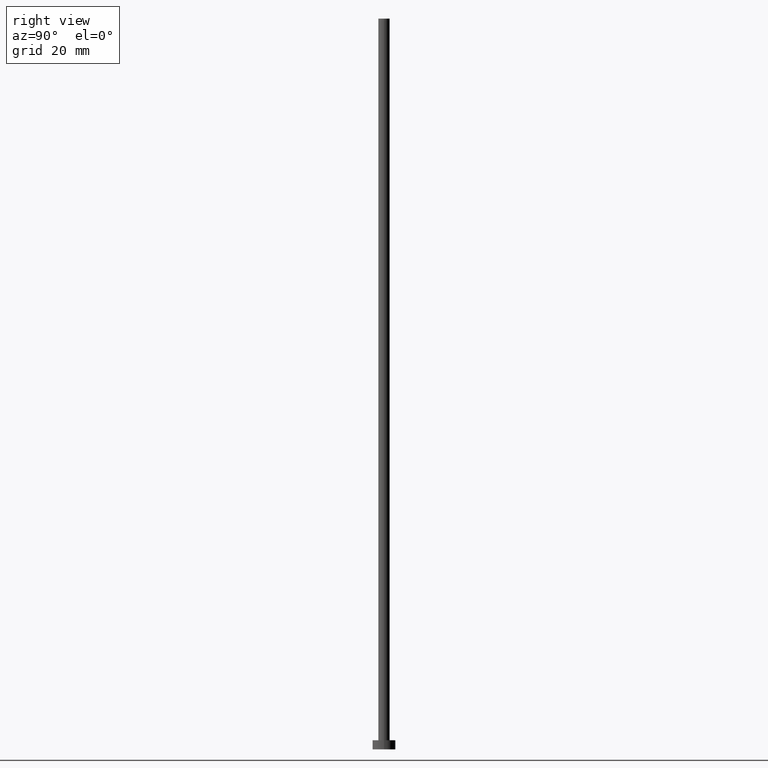
[diagram: clean part render]
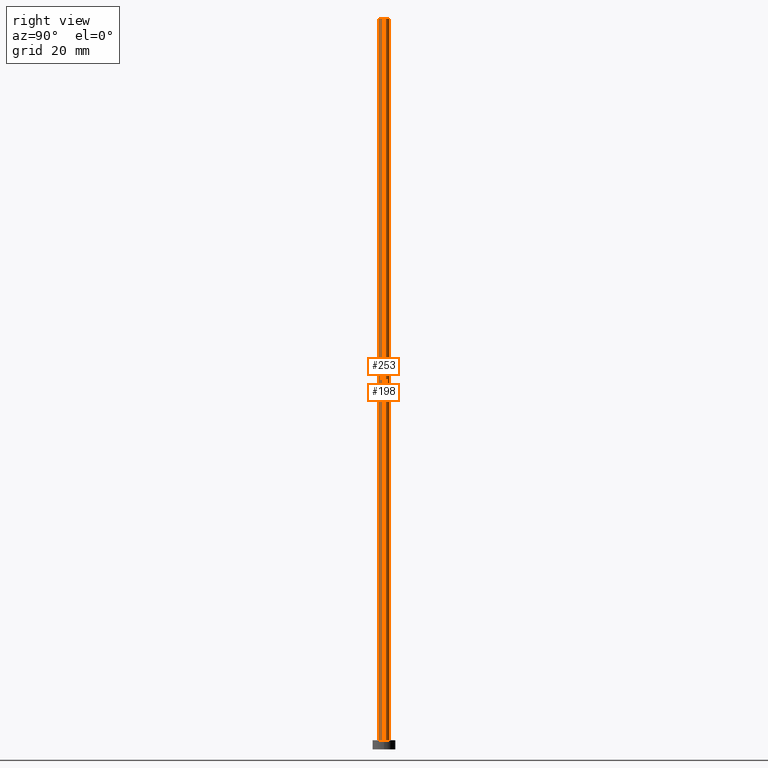
[diagram: same view with one multi-face feature highlighted, each face labeled with its STEP entity id]
A machine part, right view. The highlighted faces form ONE feature: a constant-radius fillet chain: 2 tangent blend faces with common blend radius 1.25 mm. The faces share edges in the B-rep.
Their STEP definitions:
[1] entity #253 (Cylinder):
#6 = CYLINDRICAL_SURFACE ( 'NONE', #110, 1.250000000000000000 ) ;
#7 = DIRECTION ( 'NONE',  ( -1.000000000000000000, 0.000000000000000000, 0.000000000000000000 ) ) ;
#10 = EDGE_LOOP ( 'NONE', ( #50, #92, #49, #131 ) ) ;
#12 = AXIS2_PLACEMENT_3D ( 'NONE', #150, #46, #21 ) ;
#21 = DIRECTION ( 'NONE',  ( 1.000000000000000000, 0.000000000000000000, 0.000000000000000000 ) ) ;
#30 = CARTESIAN_POINT ( 'NONE',  ( 0.000000000000000000, 0.000000000000000000, 160.0000000000000000 ) ) ;
#35 = DIRECTION ( 'NONE',  ( -0.000000000000000000, -0.000000000000000000, -1.000000000000000000 ) ) ;
#36 = DIRECTION ( 'NONE',  ( -0.000000000000000000, -0.000000000000000000, -1.000000000000000000 ) ) ;
#38 = EDGE_CURVE ( 'NONE', #243, #95, #66, .T. ) ;
#46 = DIRECTION ( 'NONE',  ( 0.000000000000000000, 0.000000000000000000, 1.000000000000000000 ) ) ;
#49 = ORIENTED_EDGE ( 'NONE', *, *, #167, .T. ) ;
#50 = ORIENTED_EDGE ( 'NONE', *, *, #62, .F. ) ;
#53 = DIRECTION ( 'NONE',  ( 0.000000000000000000, 0.000000000000000000, 1.000000000000000000 ) ) ;
#62 = EDGE_CURVE ( 'NONE', #79, #95, #69, .T. ) ;
#66 = CIRCLE ( 'NONE', #12, 1.250000000000000000 ) ;
#69 = LINE ( 'NONE', #109, #232 ) ;
#79 = VERTEX_POINT ( 'NONE', #172 ) ;
#92 = ORIENTED_EDGE ( 'NONE', *, *, #229, .F. ) ;
#95 = VERTEX_POINT ( 'NONE', #171 ) ;
#96 = CARTESIAN_POINT ( 'NONE',  ( -1.250000000000000000, 0.000000000000000000, 2.000000000000000000 ) ) ;
#109 = CARTESIAN_POINT ( 'NONE',  ( 1.250000000000000000, 1.530808498934191571E-16, 160.0000000000000000 ) ) ;
#110 = AXIS2_PLACEMENT_3D ( 'NONE', #190, #35, #7 ) ;
#114 = CIRCLE ( 'NONE', #248, 1.250000000000000000 ) ;
#131 = ORIENTED_EDGE ( 'NONE', *, *, #38, .T. ) ;
#133 = LINE ( 'NONE', #226, #170 ) ;
#150 = CARTESIAN_POINT ( 'NONE',  ( 0.000000000000000000, 0.000000000000000000, 2.000000000000000000 ) ) ;
#167 = EDGE_CURVE ( 'NONE', #210, #243, #133, .T. ) ;
#170 = VECTOR ( 'NONE', #36, 1000.000000000000000 ) ;
#171 = CARTESIAN_POINT ( 'NONE',  ( 1.250000000000000000, 1.530808498934191571E-16, 2.000000000000000000 ) ) ;
#172 = CARTESIAN_POINT ( 'NONE',  ( 1.250000000000000000, 1.530808498934191571E-16, 160.0000000000000000 ) ) ;
#176 = FACE_OUTER_BOUND ( 'NONE', #10, .T. ) ;
#190 = CARTESIAN_POINT ( 'NONE',  ( 0.000000000000000000, 0.000000000000000000, 160.0000000000000000 ) ) ;
#203 = DIRECTION ( 'NONE',  ( -0.000000000000000000, -0.000000000000000000, -1.000000000000000000 ) ) ;
#210 = VERTEX_POINT ( 'NONE', #223 ) ;
#223 = CARTESIAN_POINT ( 'NONE',  ( -1.250000000000000000, 0.000000000000000000, 160.0000000000000000 ) ) ;
#224 = DIRECTION ( 'NONE',  ( 1.000000000000000000, 0.000000000000000000, 0.000000000000000000 ) ) ;
#226 = CARTESIAN_POINT ( 'NONE',  ( -1.250000000000000000, 0.000000000000000000, 160.0000000000000000 ) ) ;
#229 = EDGE_CURVE ( 'NONE', #210, #79, #114, .T. ) ;
#232 = VECTOR ( 'NONE', #203, 1000.000000000000000 ) ;
#243 = VERTEX_POINT ( 'NONE', #96 ) ;
#248 = AXIS2_PLACEMENT_3D ( 'NONE', #30, #53, #224 ) ;
#253 = ADVANCED_FACE ( 'NONE', ( #176 ), #6, .T. ) ;
[2] entity #198 (Cylinder):
#14 = CIRCLE ( 'NONE', #63, 1.250000000000000000 ) ;
#25 = CARTESIAN_POINT ( 'NONE',  ( 0.000000000000000000, 0.000000000000000000, 160.0000000000000000 ) ) ;
#29 = AXIS2_PLACEMENT_3D ( 'NONE', #25, #187, #236 ) ;
#36 = DIRECTION ( 'NONE',  ( -0.000000000000000000, -0.000000000000000000, -1.000000000000000000 ) ) ;
#47 = CYLINDRICAL_SURFACE ( 'NONE', #56, 1.250000000000000000 ) ;
#56 = AXIS2_PLACEMENT_3D ( 'NONE', #129, #99, #206 ) ;
#60 = EDGE_LOOP ( 'NONE', ( #157, #76, #199, #144 ) ) ;
#62 = EDGE_CURVE ( 'NONE', #79, #95, #69, .T. ) ;
#63 = AXIS2_PLACEMENT_3D ( 'NONE', #68, #71, #213 ) ;
#68 = CARTESIAN_POINT ( 'NONE',  ( 0.000000000000000000, 0.000000000000000000, 2.000000000000000000 ) ) ;
#69 = LINE ( 'NONE', #109, #232 ) ;
#71 = DIRECTION ( 'NONE',  ( 0.000000000000000000, 0.000000000000000000, 1.000000000000000000 ) ) ;
#76 = ORIENTED_EDGE ( 'NONE', *, *, #62, .T. ) ;
#79 = VERTEX_POINT ( 'NONE', #172 ) ;
#95 = VERTEX_POINT ( 'NONE', #171 ) ;
#96 = CARTESIAN_POINT ( 'NONE',  ( -1.250000000000000000, 0.000000000000000000, 2.000000000000000000 ) ) ;
#99 = DIRECTION ( 'NONE',  ( -0.000000000000000000, -0.000000000000000000, -1.000000000000000000 ) ) ;
#109 = CARTESIAN_POINT ( 'NONE',  ( 1.250000000000000000, 1.530808498934191571E-16, 160.0000000000000000 ) ) ;
#129 = CARTESIAN_POINT ( 'NONE',  ( 0.000000000000000000, 0.000000000000000000, 160.0000000000000000 ) ) ;
#133 = LINE ( 'NONE', #226, #170 ) ;
#135 = EDGE_CURVE ( 'NONE', #79, #210, #185, .T. ) ;
#141 = EDGE_CURVE ( 'NONE', #95, #243, #14, .T. ) ;
#144 = ORIENTED_EDGE ( 'NONE', *, *, #167, .F. ) ;
#157 = ORIENTED_EDGE ( 'NONE', *, *, #135, .F. ) ;
#167 = EDGE_CURVE ( 'NONE', #210, #243, #133, .T. ) ;
#170 = VECTOR ( 'NONE', #36, 1000.000000000000000 ) ;
#171 = CARTESIAN_POINT ( 'NONE',  ( 1.250000000000000000, 1.530808498934191571E-16, 2.000000000000000000 ) ) ;
#172 = CARTESIAN_POINT ( 'NONE',  ( 1.250000000000000000, 1.530808498934191571E-16, 160.0000000000000000 ) ) ;
#185 = CIRCLE ( 'NONE', #29, 1.250000000000000000 ) ;
#187 = DIRECTION ( 'NONE',  ( 0.000000000000000000, 0.000000000000000000, 1.000000000000000000 ) ) ;
#198 = ADVANCED_FACE ( 'NONE', ( #214 ), #47, .T. ) ;
#199 = ORIENTED_EDGE ( 'NONE', *, *, #141, .T. ) ;
#203 = DIRECTION ( 'NONE',  ( -0.000000000000000000, -0.000000000000000000, -1.000000000000000000 ) ) ;
#206 = DIRECTION ( 'NONE',  ( -1.000000000000000000, 0.000000000000000000, 0.000000000000000000 ) ) ;
#210 = VERTEX_POINT ( 'NONE', #223 ) ;
#213 = DIRECTION ( 'NONE',  ( 1.000000000000000000, 0.000000000000000000, 0.000000000000000000 ) ) ;
#214 = FACE_OUTER_BOUND ( 'NONE', #60, .T. ) ;
#223 = CARTESIAN_POINT ( 'NONE',  ( -1.250000000000000000, 0.000000000000000000, 160.0000000000000000 ) ) ;
#226 = CARTESIAN_POINT ( 'NONE',  ( -1.250000000000000000, 0.000000000000000000, 160.0000000000000000 ) ) ;
#232 = VECTOR ( 'NONE', #203, 1000.000000000000000 ) ;
#236 = DIRECTION ( 'NONE',  ( 1.000000000000000000, 0.000000000000000000, 0.000000000000000000 ) ) ;
#243 = VERTEX_POINT ( 'NONE', #96 ) ;